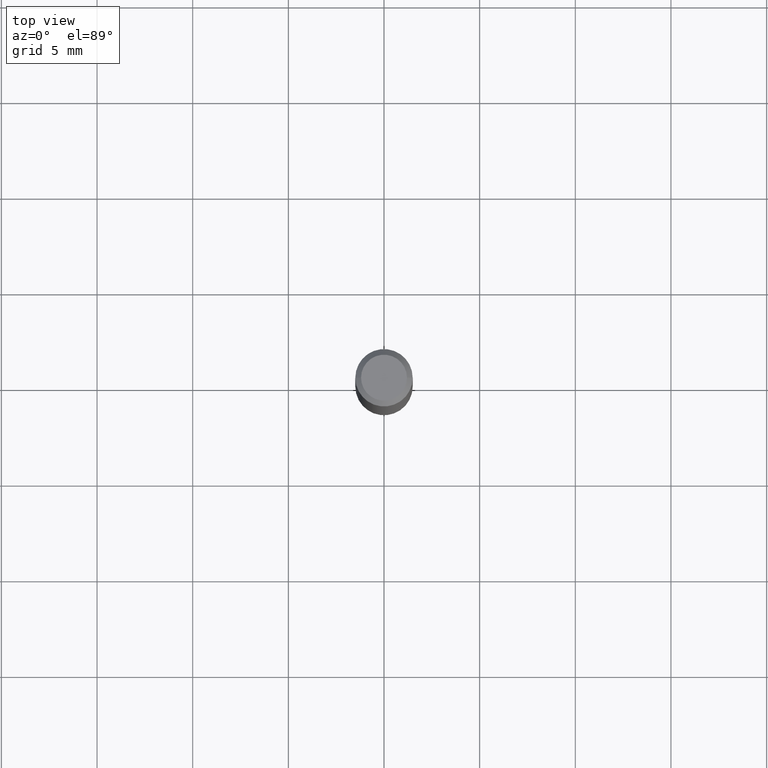
[diagram: clean part render]
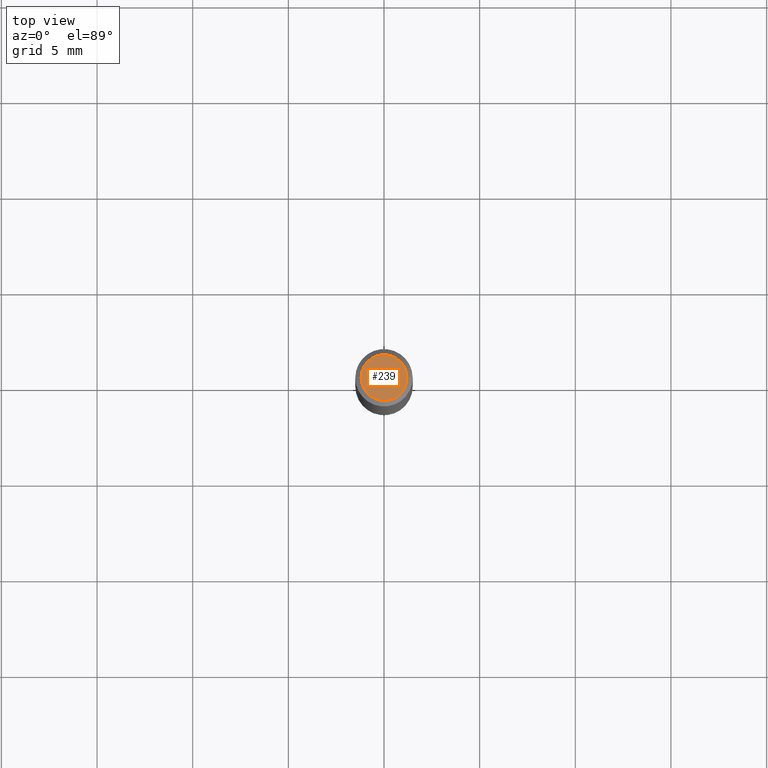
[diagram: same view with one face highlighted and labeled with its STEP entity id]
A machine part, top view. The second image highlights one B-rep face of the part: STEP entity #239.
In plain terms, the highlighted planar face has unit normal (0, -0, -1).
Its self-contained STEP definition (entity closure, byte-faithful):
#10 = DIRECTION ( 'NONE',  ( -2.445468806185136597E-29, 3.491481338843145583E-15, 1.000000000000000000 ) ) ;
#24 = CARTESIAN_POINT ( 'NONE',  ( 8.265746106709734507E-48, -1.180129479067563789E-33, -3.380025165646692144E-19 ) ) ;
#39 = ORIENTED_EDGE ( 'NONE', *, *, #490, .T. ) ;
#77 = CARTESIAN_POINT ( 'NONE',  ( -0.04724000000000000421, 3.504923541997677355E-16, -3.380025165670481712E-19 ) ) ;
#78 = EDGE_LOOP ( 'NONE', ( #39, #345 ) ) ;
#86 = EDGE_CURVE ( 'NONE', #309, #197, #123, .T. ) ;
#95 = DIRECTION ( 'NONE',  ( -2.445468806185136597E-29, 3.491481338843145583E-15, 1.000000000000000000 ) ) ;
#103 = DIRECTION ( 'NONE',  ( 1.000000000000000000, -6.982962677686266711E-15, 4.876185090822587894E-29 ) ) ;
#106 = CARTESIAN_POINT ( 'NONE',  ( 4.132873053354867254E-48, -5.900647395337818946E-34, -1.690012582823346072E-19 ) ) ;
#111 = FACE_OUTER_BOUND ( 'NONE', #78, .T. ) ;
#123 = CIRCLE ( 'NONE', #129, 0.04724000000000000421 ) ;
#129 = AXIS2_PLACEMENT_3D ( 'NONE', #349, #10, #103 ) ;
#179 = AXIS2_PLACEMENT_3D ( 'NONE', #106, #485, #180 ) ;
#180 = DIRECTION ( 'NONE',  ( -1.000000000000000000, 6.982962677686265922E-15, -4.876176775795935793E-29 ) ) ;
#197 = VERTEX_POINT ( 'NONE', #77 ) ;
#239 = ADVANCED_FACE ( 'NONE', ( #111 ), #305, .F. ) ;
#247 = AXIS2_PLACEMENT_3D ( 'NONE', #24, #95, #250 ) ;
#250 = DIRECTION ( 'NONE',  ( 1.000000000000000000, -6.982962677686266711E-15, 4.876185090822587894E-29 ) ) ;
#305 = PLANE ( 'NONE',  #179 ) ;
#309 = VERTEX_POINT ( 'NONE', #392 ) ;
#345 = ORIENTED_EDGE ( 'NONE', *, *, #86, .T. ) ;
#349 = CARTESIAN_POINT ( 'NONE',  ( 8.265746106709734507E-48, -1.180129479067563789E-33, -3.380025165646692144E-19 ) ) ;
#392 = CARTESIAN_POINT ( 'NONE',  ( 0.04724000000000000421, -3.852183633974369345E-16, -3.380025165621689721E-19 ) ) ;
#426 = CIRCLE ( 'NONE', #247, 0.04724000000000000421 ) ;
#485 = DIRECTION ( 'NONE',  ( 2.438088387897960049E-29, -3.491481338843145188E-15, -1.000000000000000000 ) ) ;
#490 = EDGE_CURVE ( 'NONE', #197, #309, #426, .T. ) ;